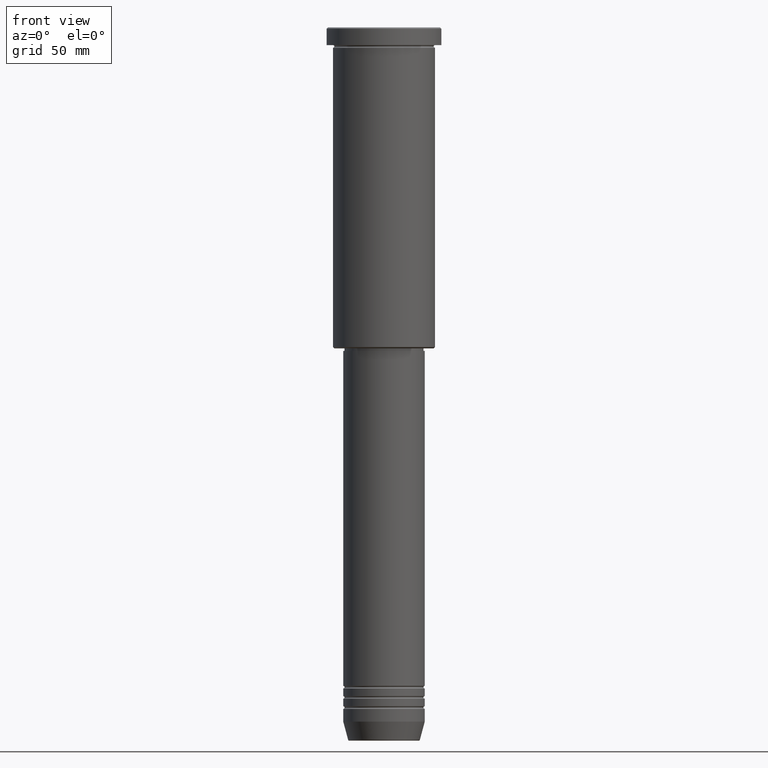
[diagram: clean part render]
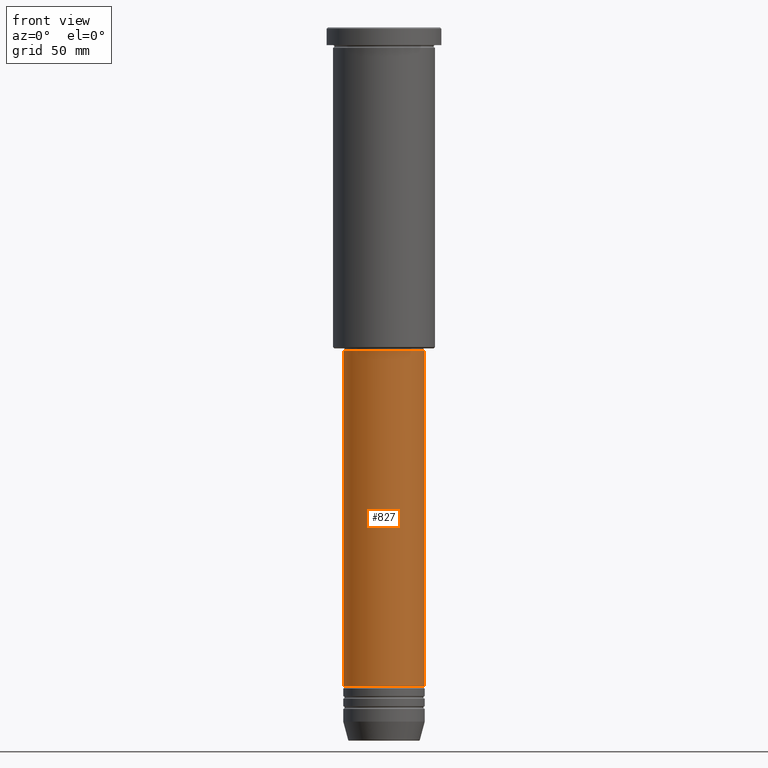
[diagram: same view with one face highlighted and labeled with its STEP entity id]
A machine part, front view. The second image highlights one B-rep face of the part: STEP entity #827.
In plain terms, the highlighted cylindrical surface (partial cylindrical patch) has radius 16 mm, axis along (-0, -0, 1).
Its self-contained STEP definition (entity closure, byte-faithful):
#15 = DIRECTION ( 'NONE',  ( -0.000000000000000000, -0.000000000000000000, 1.000000000000000000 ) ) ;
#22 = VERTEX_POINT ( 'NONE', #188 ) ;
#28 = VECTOR ( 'NONE', #679, 1000.000000000000000 ) ;
#60 = DIRECTION ( 'NONE',  ( 1.000000000000000000, 0.000000000000000000, 0.000000000000000000 ) ) ;
#72 = DIRECTION ( 'NONE',  ( -0.000000000000000000, -0.000000000000000000, 1.000000000000000000 ) ) ;
#112 = AXIS2_PLACEMENT_3D ( 'NONE', #1003, #72, #60 ) ;
#113 = CARTESIAN_POINT ( 'NONE',  ( 16.00000000000000000, 0.000000000000000000, -258.5000000000000000 ) ) ;
#160 = CARTESIAN_POINT ( 'NONE',  ( 16.00000000000000000, 0.000000000000000000, 0.000000000000000000 ) ) ;
#172 = CIRCLE ( 'NONE', #626, 16.00000000000000000 ) ;
#188 = CARTESIAN_POINT ( 'NONE',  ( 16.00000000000000000, 0.000000000000000000, -127.0000000000000000 ) ) ;
#278 = EDGE_CURVE ( 'NONE', #972, #22, #872, .T. ) ;
#314 = CARTESIAN_POINT ( 'NONE',  ( -16.00000000000000000, 1.959434878635765131E-15, 0.000000000000000000 ) ) ;
#324 = CIRCLE ( 'NONE', #817, 16.00000000000000000 ) ;
#333 = EDGE_CURVE ( 'NONE', #887, #22, #172, .T. ) ;
#362 = DIRECTION ( 'NONE',  ( -0.000000000000000000, -0.000000000000000000, 1.000000000000000000 ) ) ;
#384 = DIRECTION ( 'NONE',  ( 1.000000000000000000, 0.000000000000000000, 0.000000000000000000 ) ) ;
#411 = VECTOR ( 'NONE', #516, 1000.000000000000000 ) ;
#433 = EDGE_CURVE ( 'NONE', #1148, #887, #955, .T. ) ;
#436 = DIRECTION ( 'NONE',  ( 1.000000000000000000, 0.000000000000000000, 0.000000000000000000 ) ) ;
#453 = ORIENTED_EDGE ( 'NONE', *, *, #1151, .T. ) ;
#516 = DIRECTION ( 'NONE',  ( -0.000000000000000000, -0.000000000000000000, 1.000000000000000000 ) ) ;
#522 = CARTESIAN_POINT ( 'NONE',  ( 0.000000000000000000, 0.000000000000000000, -258.5000000000000000 ) ) ;
#607 = CARTESIAN_POINT ( 'NONE',  ( -16.00000000000000000, 1.959434878635765131E-15, -258.5000000000000000 ) ) ;
#626 = AXIS2_PLACEMENT_3D ( 'NONE', #762, #15, #384 ) ;
#639 = CYLINDRICAL_SURFACE ( 'NONE', #112, 16.00000000000000000 ) ;
#679 = DIRECTION ( 'NONE',  ( -0.000000000000000000, -0.000000000000000000, 1.000000000000000000 ) ) ;
#740 = EDGE_LOOP ( 'NONE', ( #777, #453, #967, #986 ) ) ;
#762 = CARTESIAN_POINT ( 'NONE',  ( 0.000000000000000000, 0.000000000000000000, -127.0000000000000000 ) ) ;
#777 = ORIENTED_EDGE ( 'NONE', *, *, #433, .F. ) ;
#817 = AXIS2_PLACEMENT_3D ( 'NONE', #522, #362, #436 ) ;
#827 = ADVANCED_FACE ( 'NONE', ( #991 ), #639, .T. ) ;
#872 = LINE ( 'NONE', #160, #411 ) ;
#887 = VERTEX_POINT ( 'NONE', #1112 ) ;
#955 = LINE ( 'NONE', #314, #28 ) ;
#967 = ORIENTED_EDGE ( 'NONE', *, *, #278, .T. ) ;
#972 = VERTEX_POINT ( 'NONE', #113 ) ;
#986 = ORIENTED_EDGE ( 'NONE', *, *, #333, .F. ) ;
#991 = FACE_OUTER_BOUND ( 'NONE', #740, .T. ) ;
#1003 = CARTESIAN_POINT ( 'NONE',  ( 0.000000000000000000, 0.000000000000000000, 0.000000000000000000 ) ) ;
#1112 = CARTESIAN_POINT ( 'NONE',  ( -16.00000000000000000, 1.959434878635765131E-15, -127.0000000000000000 ) ) ;
#1148 = VERTEX_POINT ( 'NONE', #607 ) ;
#1151 = EDGE_CURVE ( 'NONE', #1148, #972, #324, .T. ) ;